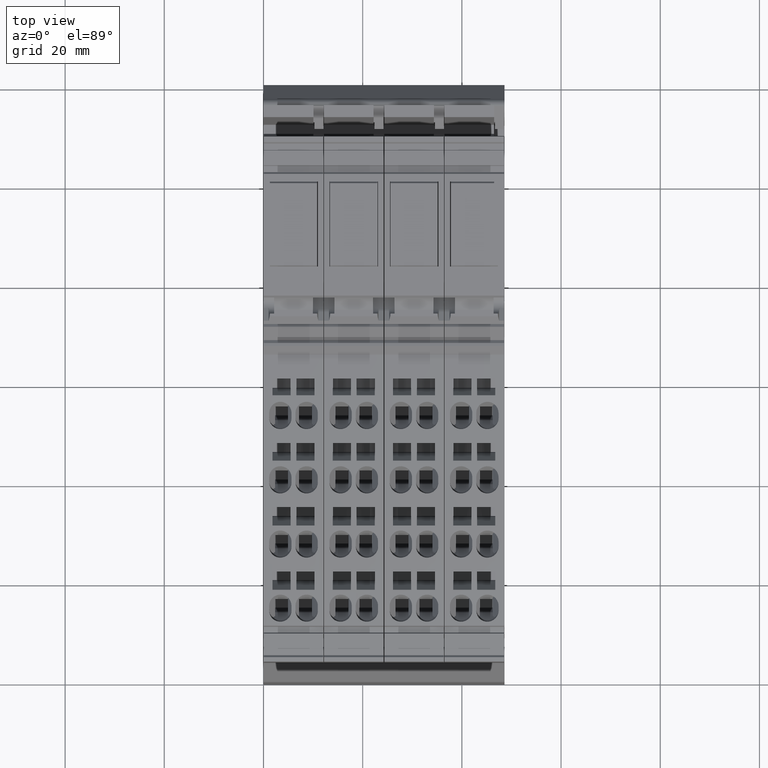
[diagram: clean part render]
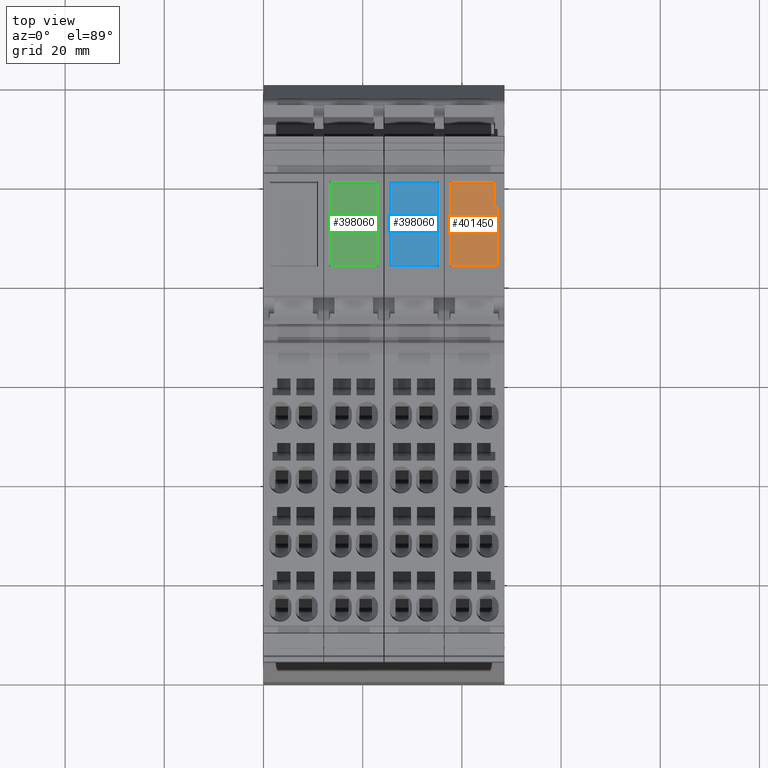
[diagram: same view with three faces highlighted in distinct colors, each labeled with its STEP entity id]
A machine part, top view with three faces highlighted in distinct colors.
Their STEP definitions:

[orange] entity #401450 — the highlighted planar face has unit normal (0, 0, 1).
#400550=CARTESIAN_POINT('',(106.891351313916,84.4562740524357,
-9.59999999999789));
#400560=VERTEX_POINT('',#400550);
#400590=CARTESIAN_POINT('',(90.426738,84.4562740524359,-9.59999999999789
));
#400600=DIRECTION('',(-1.,1.05193631583234E-14,0.));
#400610=VECTOR('',#400600,1.);
#400620=LINE('',#400590,#400610);
#400630=CARTESIAN_POINT('',(90.2913513139157,84.4562740524359,
-9.59999999999789));
#400640=VERTEX_POINT('',#400630);
#400650=EDGE_CURVE('',#400560,#400640,#400620,.T.);
#400990=CARTESIAN_POINT('',(90.5147590000011,84.4562740524359,
-4.71143400000001));
#401000=DIRECTION('',(1.05193631583234E-14,1.,-0.));
#401010=DIRECTION('',(-1.,1.05193631583234E-14,0.));
#401020=AXIS2_PLACEMENT_3D('',#400990,#401000,#401010);
#401030=PLANE('',#401020);
#401040=ORIENTED_EDGE('',*,*,#400650,.T.);
#401050=CARTESIAN_POINT('',(106.891351313916,84.4562740524357,-0.25));
#401060=DIRECTION('',(0.,0.,1.));
#401070=VECTOR('',#401060,1.);
#401080=LINE('',#401050,#401070);
#401090=CARTESIAN_POINT('',(106.891351313916,84.4562740524357,
-0.850000000000001));
#401100=VERTEX_POINT('',#401090);
#401110=EDGE_CURVE('',#400560,#401100,#401080,.T.);
#401120=ORIENTED_EDGE('',*,*,#401110,.F.);
#401130=CARTESIAN_POINT('',(90.426738,84.4562740524359,
-0.850000000000001));
#401140=DIRECTION('',(1.,-1.05193631583234E-14,0.));
#401150=VECTOR('',#401140,1.);
#401160=LINE('',#401130,#401150);
#401170=CARTESIAN_POINT('',(101.991351313916,84.4562740524357,
-0.850000000000001));
#401180=VERTEX_POINT('',#401170);
#401190=EDGE_CURVE('',#401180,#401100,#401160,.T.);
#401200=ORIENTED_EDGE('',*,*,#401190,.T.);
#401210=CARTESIAN_POINT('',(101.991351313916,84.4562740524357,-0.25));
#401220=DIRECTION('',(0.,0.,-1.));
#401230=VECTOR('',#401220,1.);
#401240=LINE('',#401210,#401230);
#401250=CARTESIAN_POINT('',(101.991351313916,84.4562740524357,
-0.0999999999999872));
#401260=VERTEX_POINT('',#401250);
#401270=EDGE_CURVE('',#401260,#401180,#401240,.T.);
#401280=ORIENTED_EDGE('',*,*,#401270,.T.);
#401290=CARTESIAN_POINT('',(90.426738,84.4562740524359,
-0.0999999999999872));
#401300=DIRECTION('',(1.,-1.05193631583234E-14,0.));
#401310=VECTOR('',#401300,1.);
#401320=LINE('',#401290,#401310);
#401330=CARTESIAN_POINT('',(90.2913513139157,84.4562740524359,
-0.0999999999999872));
#401340=VERTEX_POINT('',#401330);
#401350=EDGE_CURVE('',#401340,#401260,#401320,.T.);
#401360=ORIENTED_EDGE('',*,*,#401350,.T.);
#401370=CARTESIAN_POINT('',(90.2913513139157,84.4562740524359,-0.25));
#401380=DIRECTION('',(0.,0.,-1.));
#401390=VECTOR('',#401380,1.);
#401400=LINE('',#401370,#401390);
#401410=EDGE_CURVE('',#401340,#400640,#401400,.T.);
#401420=ORIENTED_EDGE('',*,*,#401410,.F.);
#401430=EDGE_LOOP('',(#401420,#401360,#401280,#401200,#401120,#401040));
#401440=FACE_OUTER_BOUND('',#401430,.T.);
#401450=ADVANCED_FACE('',(#401440),#401030,.T.);

[blue] entity #398060 — the highlighted planar face has unit normal (0, 0, 1).
#397320=CARTESIAN_POINT('',(106.891351313916,84.4562740524357,
-9.59999999999789));
#397330=VERTEX_POINT('',#397320);
#397360=CARTESIAN_POINT('',(90.426738,84.4562740524359,-9.59999999999789
));
#397370=DIRECTION('',(-1.,1.05193631583234E-14,0.));
#397380=VECTOR('',#397370,1.);
#397390=LINE('',#397360,#397380);
#397400=CARTESIAN_POINT('',(90.2913513139157,84.4562740524359,
-9.59999999999789));
#397410=VERTEX_POINT('',#397400);
#397420=EDGE_CURVE('',#397330,#397410,#397390,.T.);
#397760=CARTESIAN_POINT('',(90.5147590000011,84.4562740524359,
-4.71143400000001));
#397770=DIRECTION('',(1.05193631583234E-14,1.,-0.));
#397780=DIRECTION('',(-1.,1.05193631583234E-14,0.));
#397790=AXIS2_PLACEMENT_3D('',#397760,#397770,#397780);
#397800=PLANE('',#397790);
#397810=ORIENTED_EDGE('',*,*,#397420,.T.);
#397820=CARTESIAN_POINT('',(106.891351313916,84.4562740524357,-0.25));
#397830=DIRECTION('',(0.,0.,1.));
#397840=VECTOR('',#397830,1.);
#397850=LINE('',#397820,#397840);
#397860=CARTESIAN_POINT('',(106.891351313916,84.4562740524357,
-0.0999999999999872));
#397870=VERTEX_POINT('',#397860);
#397880=EDGE_CURVE('',#397330,#397870,#397850,.T.);
#397890=ORIENTED_EDGE('',*,*,#397880,.F.);
#397900=CARTESIAN_POINT('',(90.426738,84.4562740524359,
-0.0999999999999872));
#397910=DIRECTION('',(1.,-1.05193631583234E-14,0.));
#397920=VECTOR('',#397910,1.);
#397930=LINE('',#397900,#397920);
#397940=CARTESIAN_POINT('',(90.2913513139157,84.4562740524359,
-0.0999999999999872));
#397950=VERTEX_POINT('',#397940);
#397960=EDGE_CURVE('',#397950,#397870,#397930,.T.);
#397970=ORIENTED_EDGE('',*,*,#397960,.T.);
#397980=CARTESIAN_POINT('',(90.2913513139157,84.4562740524359,-0.25));
#397990=DIRECTION('',(0.,0.,-1.));
#398000=VECTOR('',#397990,1.);
#398010=LINE('',#397980,#398000);
#398020=EDGE_CURVE('',#397950,#397410,#398010,.T.);
#398030=ORIENTED_EDGE('',*,*,#398020,.F.);
#398040=EDGE_LOOP('',(#398030,#397970,#397890,#397810));
#398050=FACE_OUTER_BOUND('',#398040,.T.);
#398060=ADVANCED_FACE('',(#398050),#397800,.T.);

[green] entity #398060 — the highlighted planar face has unit normal (0, 0, 1).
#397320=CARTESIAN_POINT('',(106.891351313916,84.4562740524357,
-9.59999999999789));
#397330=VERTEX_POINT('',#397320);
#397360=CARTESIAN_POINT('',(90.426738,84.4562740524359,-9.59999999999789
));
#397370=DIRECTION('',(-1.,1.05193631583234E-14,0.));
#397380=VECTOR('',#397370,1.);
#397390=LINE('',#397360,#397380);
#397400=CARTESIAN_POINT('',(90.2913513139157,84.4562740524359,
-9.59999999999789));
#397410=VERTEX_POINT('',#397400);
#397420=EDGE_CURVE('',#397330,#397410,#397390,.T.);
#397760=CARTESIAN_POINT('',(90.5147590000011,84.4562740524359,
-4.71143400000001));
#397770=DIRECTION('',(1.05193631583234E-14,1.,-0.));
#397780=DIRECTION('',(-1.,1.05193631583234E-14,0.));
#397790=AXIS2_PLACEMENT_3D('',#397760,#397770,#397780);
#397800=PLANE('',#397790);
#397810=ORIENTED_EDGE('',*,*,#397420,.T.);
#397820=CARTESIAN_POINT('',(106.891351313916,84.4562740524357,-0.25));
#397830=DIRECTION('',(0.,0.,1.));
#397840=VECTOR('',#397830,1.);
#397850=LINE('',#397820,#397840);
#397860=CARTESIAN_POINT('',(106.891351313916,84.4562740524357,
-0.0999999999999872));
#397870=VERTEX_POINT('',#397860);
#397880=EDGE_CURVE('',#397330,#397870,#397850,.T.);
#397890=ORIENTED_EDGE('',*,*,#397880,.F.);
#397900=CARTESIAN_POINT('',(90.426738,84.4562740524359,
-0.0999999999999872));
#397910=DIRECTION('',(1.,-1.05193631583234E-14,0.));
#397920=VECTOR('',#397910,1.);
#397930=LINE('',#397900,#397920);
#397940=CARTESIAN_POINT('',(90.2913513139157,84.4562740524359,
-0.0999999999999872));
#397950=VERTEX_POINT('',#397940);
#397960=EDGE_CURVE('',#397950,#397870,#397930,.T.);
#397970=ORIENTED_EDGE('',*,*,#397960,.T.);
#397980=CARTESIAN_POINT('',(90.2913513139157,84.4562740524359,-0.25));
#397990=DIRECTION('',(0.,0.,-1.));
#398000=VECTOR('',#397990,1.);
#398010=LINE('',#397980,#398000);
#398020=EDGE_CURVE('',#397950,#397410,#398010,.T.);
#398030=ORIENTED_EDGE('',*,*,#398020,.F.);
#398040=EDGE_LOOP('',(#398030,#397970,#397890,#397810));
#398050=FACE_OUTER_BOUND('',#398040,.T.);
#398060=ADVANCED_FACE('',(#398050),#397800,.T.);